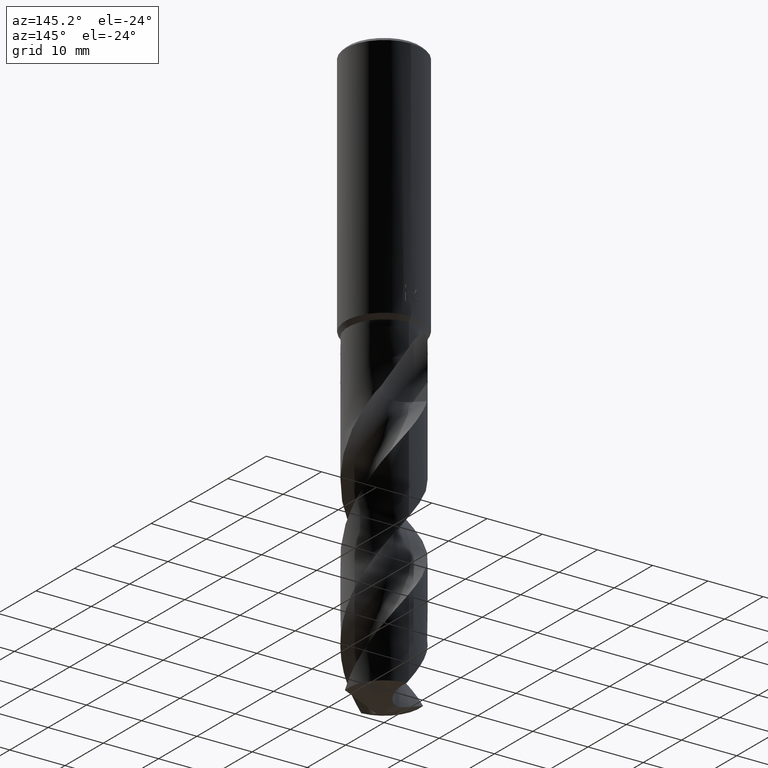
[diagram: clean part render]
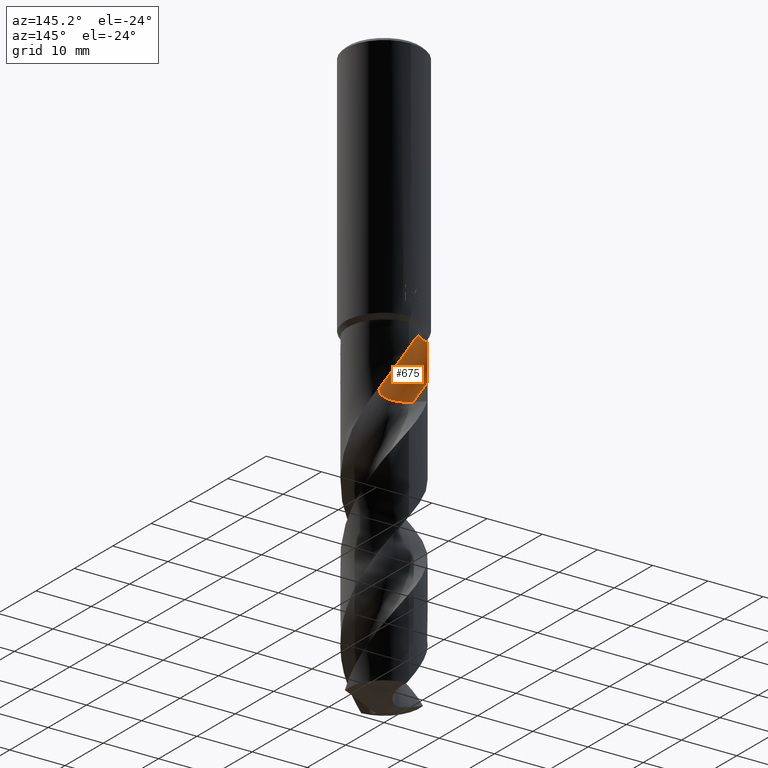
[diagram: same view with one face highlighted and labeled with its STEP entity id]
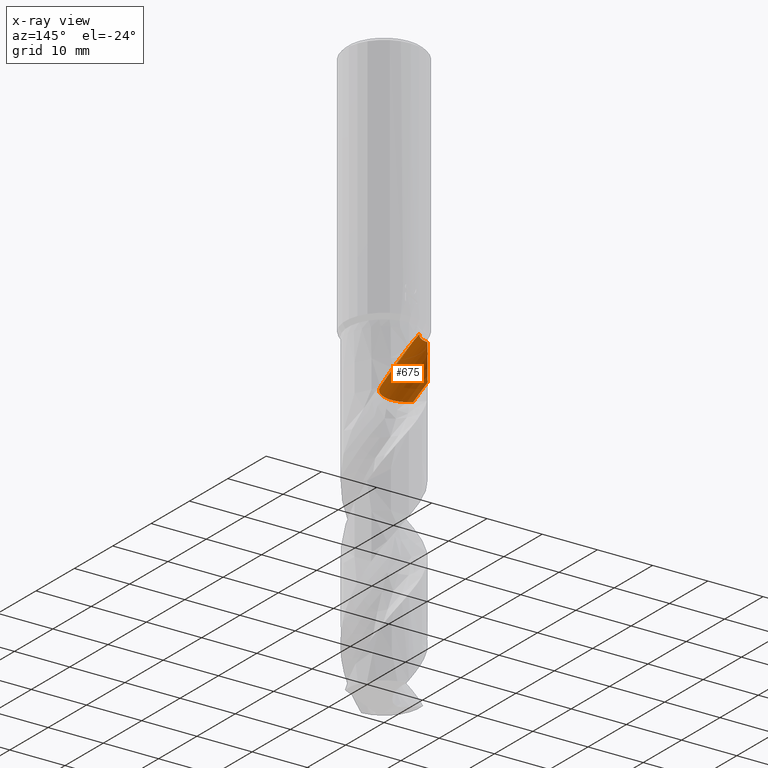
[diagram: x-ray of the same camera — body ghosted, the highlighted face saturated]
A machine part, auxiliary view. The second image highlights one B-rep face of the part: STEP entity #675.
The next image is the same camera in x-ray: the body ghosted, the highlighted face saturated — about 0% of this face is hidden behind the body in this view.
In plain terms, the highlighted face is a SurfaceOfRevolution surface.
Its self-contained STEP definition (entity closure, byte-faithful):
#305=VERTEX_POINT('',#800);
#311=VERTEX_POINT('',#806);
#453=EDGE_CURVE('',#727,#311,#958,.T.);
#481=EDGE_CURVE('',#531,#311,#990,.T.);
#527=EDGE_CURVE('',#305,#687,#1039,.T.);
#531=VERTEX_POINT('',#1043);
#579=VERTEX_POINT('',#1097);
#591=EDGE_CURVE('',#305,#579,#1110,.T.);
#619=EDGE_CURVE('',#687,#705,#1141,.T.);
#661=EDGE_CURVE('',#579,#727,#1187,.T.);
#675=ADVANCED_FACE('',(#1202),#1203,.F.);
#687=VERTEX_POINT('',#1215);
#705=VERTEX_POINT('',#1237);
#727=VERTEX_POINT('',#1261);
#729=EDGE_CURVE('',#705,#531,#1263,.T.);
#800=CARTESIAN_POINT('',(4.14186475406435,5.00937901935965,-56.833));
#806=CARTESIAN_POINT('',(-5.28858875833271,3.77884512342304,-53.27386499901));
#958=CIRCLE('',#2456,28.2441893352658);
#990=B_SPLINE_CURVE_WITH_KNOTS('',3,(#3334,#3335,#3336,#3337,#3338,#3339,#3340,#3341,#3342,#3343),.UNSPECIFIED.,.F.,.F.,(4,2,2,2,4),(0.0,1.2203542913545,2.92617495348979,3.82325205615836,4.7596318888425),.UNSPECIFIED.);
#1039=B_SPLINE_CURVE_WITH_KNOTS('',3,(#3531,#3532,#3533,#3534,#3535,#3536,#3537,#3538,#3539,#3540,#3541,#3542,#3543,#3544),.UNSPECIFIED.,.F.,.F.,(4,2,2,2,2,2,4),(0.0,3.18463830226556,4.92351892139036,6.49849635721916,8.32822316237883,10.5261324562347,11.6539761045063),.UNSPECIFIED.);
#1043=CARTESIAN_POINT('',(-4.92586433088962,4.24082074646752,-47.0));
#1097=CARTESIAN_POINT('',(-0.479954234565756,1.97664306943137,-56.833));
#1110=CIRCLE('',#3913,4.33333333);
#1141=B_SPLINE_CURVE_WITH_KNOTS('',3,(#4180,#4181,#4182,#4183,#4184,#4185,#4186,#4187,#4188,#4189,#4190,#4191,#4192,#4193),.UNSPECIFIED.,.F.,.F.,(4,2,2,2,2,2,4),(0.0,3.18463830226556,4.92351892139036,6.49849635721916,8.32822316237883,10.5261324562347,11.6539761045063),.UNSPECIFIED.);
#1187=CIRCLE('',#4378,4.33333333);
#1202=FACE_OUTER_BOUND('',#4395,.T.);
#1203=SURFACE_OF_REVOLUTION('',#4396,#4397);
#1215=CARTESIAN_POINT('',(-1.92818916130824E-012,6.49990507279737,-49.9236658504024));
#1237=CARTESIAN_POINT('',(-2.21281516099998,6.11164045680443,-47.0));
#1261=CARTESIAN_POINT('',(-3.06412938271398,3.21920394728603,-56.833));
#1263=B_SPLINE_CURVE_WITH_KNOTS('',3,(#5143,#5144,#5145,#5146,#5147,#5148,#5149,#5150,#5151,#5152),.UNSPECIFIED.,.F.,.F.,(4,2,2,2,4),(0.0,1.40914596559986,2.69867681238981,4.00132224511648,5.60687501498401),.UNSPECIFIED.);
#2456=AXIS2_PLACEMENT_3D('',#5386,#5387,#5388);
#3334=CARTESIAN_POINT('',(-4.92586433088962,4.24082074646752,-47.0));
#3335=CARTESIAN_POINT('',(-5.0864706253693,4.05427167678132,-47.323850130184));
#3336=CARTESIAN_POINT('',(-5.21299116720726,3.88591228690643,-47.7263164748522));
#3337=CARTESIAN_POINT('',(-5.43990016022913,3.56493161655788,-48.8340405503375));
#3338=CARTESIAN_POINT('',(-5.51503691650971,3.43994082048672,-49.6169675386392));
#3339=CARTESIAN_POINT('',(-5.52158633616849,3.42941565764262,-50.9527523238518));
#3340=CARTESIAN_POINT('',(-5.50388112009631,3.45842766314077,-51.4132010526498));
#3341=CARTESIAN_POINT('',(-5.42866507821588,3.57539652796838,-52.344938592966));
#3342=CARTESIAN_POINT('',(-5.36961229444482,3.6654492721688,-52.8130258108434));
#3343=CARTESIAN_POINT('',(-5.28858875833272,3.77884512342303,-53.27386499901));
#3531=CARTESIAN_POINT('',(4.14186475406435,5.00937901935965,-56.833));
#3532=CARTESIAN_POINT('',(3.71310687494888,5.36388342888511,-55.9289129307683));
#3533=CARTESIAN_POINT('',(3.2201301433477,5.67901522370006,-55.086011733988));
#3534=CARTESIAN_POINT('',(2.36052396059738,6.06527466839941,-53.6778936978021));
#3535=CARTESIAN_POINT('',(2.05119714936239,6.1763868779599,-53.1824717404016));
#3536=CARTESIAN_POINT('',(1.4523805246703,6.34244704182672,-52.223468125873));
#3537=CARTESIAN_POINT('',(1.16556420457378,6.40111555173111,-51.7643558972228));
#3538=CARTESIAN_POINT('',(0.544729973329769,6.48578776349942,-50.7748536829535));
#3539=CARTESIAN_POINT('',(0.205525785127816,6.50566622521781,-50.2367180668406));
#3540=CARTESIAN_POINT('',(-0.547758985635567,6.48981993267496,-49.0854724209928));
#3541=CARTESIAN_POINT('',(-0.994379980139692,6.44081099440387,-48.4304037946964));
#3542=CARTESIAN_POINT('',(-1.69250215026654,6.28037894617764,-47.5548337677119));
#3543=CARTESIAN_POINT('',(-1.94763038128312,6.20765524018347,-47.2601139238435));
#3544=CARTESIAN_POINT('',(-2.21281516099997,6.11164045680443,-47.0));
#3913=AXIS2_PLACEMENT_3D('',#5556,#5557,#5558);
#4180=CARTESIAN_POINT('',(4.14186475406435,5.00937901935965,-56.833));
#4181=CARTESIAN_POINT('',(3.71310687494888,5.36388342888511,-55.9289129307683));
#4182=CARTESIAN_POINT('',(3.2201301433477,5.67901522370006,-55.086011733988));
#4183=CARTESIAN_POINT('',(2.36052396059738,6.06527466839941,-53.6778936978021));
#4184=CARTESIAN_POINT('',(2.05119714936239,6.1763868779599,-53.1824717404016));
#4185=CARTESIAN_POINT('',(1.4523805246703,6.34244704182672,-52.223468125873));
#4186=CARTESIAN_POINT('',(1.16556420457378,6.40111555173111,-51.7643558972228));
#4187=CARTESIAN_POINT('',(0.544729973329769,6.48578776349942,-50.7748536829535));
#4188=CARTESIAN_POINT('',(0.205525785127816,6.50566622521781,-50.2367180668406));
#4189=CARTESIAN_POINT('',(-0.547758985635567,6.48981993267496,-49.0854724209928));
#4190=CARTESIAN_POINT('',(-0.994379980139692,6.44081099440387,-48.4304037946964));
#4191=CARTESIAN_POINT('',(-1.69250215026654,6.28037894617764,-47.5548337677119));
#4192=CARTESIAN_POINT('',(-1.94763038128312,6.20765524018347,-47.2601139238435));
#4193=CARTESIAN_POINT('',(-2.21281516099997,6.11164045680443,-47.0));
#4378=AXIS2_PLACEMENT_3D('',#5645,#5646,#5647);
#4395=EDGE_LOOP('',(#5663,#5664,#5665,#5666,#5667,#5668,#5669));
#4396=(B_SPLINE_CURVE(3,(#5671,#5672,#5673,#5674,#5675,#5676,#5677,#5678,#5679),.UNSPECIFIED.,.F.,.F.)B_SPLINE_CURVE_WITH_KNOTS((4,1,3,1,4),(-2.85637090877732,-2.55358521591607,-2.25079952305483,-1.94801383019358,-1.64522813733233),.UNSPECIFIED.)RATIONAL_B_SPLINE_CURVE((1.09167917580147,1.03055972526716,0.969440274732845,1.03055972526716,1.09167917580147,1.03055972526716,0.969440274732845,1.03055972526716,1.09167917580147))BOUNDED_CURVE()REPRESENTATION_ITEM('')GEOMETRIC_REPRESENTATION_ITEM()CURVE());
#4397=AXIS1_PLACEMENT('',#5686,#5687);
#5143=CARTESIAN_POINT('',(-2.03354623566575,6.5499,-47.0));
#5144=CARTESIAN_POINT('',(-2.18395435838325,6.10491698884468,-47.0));
#5145=CARTESIAN_POINT('',(-2.41259928772629,5.69388302822053,-46.9999999999826));
#5146=CARTESIAN_POINT('',(-3.00515467709701,5.01964145526277,-46.9999999999826));
#5147=CARTESIAN_POINT('',(-3.34572339021199,4.75881843990498,-47.000000000001));
#5148=CARTESIAN_POINT('',(-4.11986424385112,4.38001383862843,-47.000000000001));
#5149=CARTESIAN_POINT('',(-4.54050960804132,4.27018694563109,-47.0000000000001));
#5150=CARTESIAN_POINT('',(-5.50571529546682,4.19586711113824,-47.0000000000001));
#5151=CARTESIAN_POINT('',(-6.04081633581658,4.2718403237176,-47.0));
#5152=CARTESIAN_POINT('',(-6.5499,4.43989030672182,-47.0));
#5386=CARTESIAN_POINT('',(-2.20341888195163,31.41666665,-58.2101368012198));
#5387=DIRECTION('',(-0.847998304005088,8.90701073069925E-018,-0.52999894000318));
#5388=DIRECTION('',(-0.0535598123793801,-0.994880693114744,0.0856956998070082));
#5556=CARTESIAN_POINT('',(2.08166608547182E-005,6.28331251333914,-56.833));
#5557=DIRECTION('',(0.0,0.0,-1.0));
#5558=DIRECTION('',(0.707101977325415,0.707111585015045,0.0));
#5645=CARTESIAN_POINT('',(2.08166608547182E-005,6.28331251333914,-56.833));
#5646=DIRECTION('',(0.0,0.0,-1.0));
#5647=DIRECTION('',(0.707101977325415,0.707111585015045,0.0));
#5663=ORIENTED_EDGE('',*,*,#481,.F.);
#5664=ORIENTED_EDGE('',*,*,#729,.F.);
#5665=ORIENTED_EDGE('',*,*,#619,.F.);
#5666=ORIENTED_EDGE('',*,*,#527,.F.);
#5667=ORIENTED_EDGE('',*,*,#591,.T.);
#5668=ORIENTED_EDGE('',*,*,#661,.T.);
#5669=ORIENTED_EDGE('',*,*,#453,.T.);
#5671=CARTESIAN_POINT('',(-3.06412938271398,3.21920394728603,-56.833));
#5672=CARTESIAN_POINT('',(-2.46395828964837,2.61902469944533,-56.833));
#5673=CARTESIAN_POINT('',(-0.903342146231203,1.7662245760462,-56.833));
#5674=CARTESIAN_POINT('',(0.865222300585803,1.95322884075345,-56.833));
#5675=CARTESIAN_POINT('',(1.65005704286884,2.2764236702228,-56.833));
#5676=CARTESIAN_POINT('',(2.43489178515188,2.59961849969215,-56.833));
#5677=CARTESIAN_POINT('',(3.8222878860946,3.71223831645472,-56.833));
#5678=CARTESIAN_POINT('',(4.32982286268348,5.41670276169925,-56.833));
#5679=CARTESIAN_POINT('',(4.3333174191064,6.26547143369747,-56.833));
#5686=CARTESIAN_POINT('',(-2.20341888195163,31.41666665,-58.2101368012198));
#5687=DIRECTION('',(0.847998304005088,-0.0,0.52999894000318));